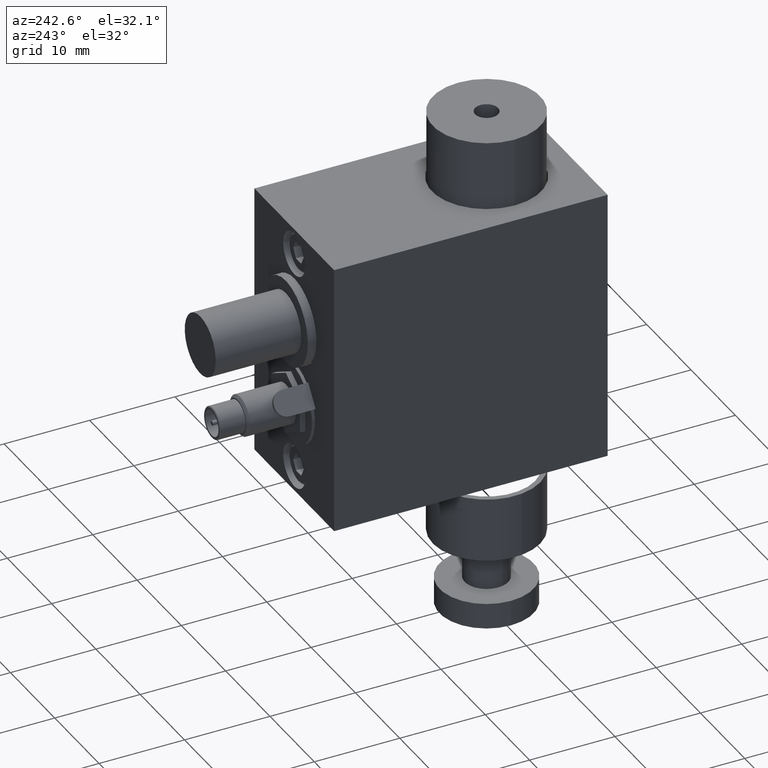
[diagram: clean part render]
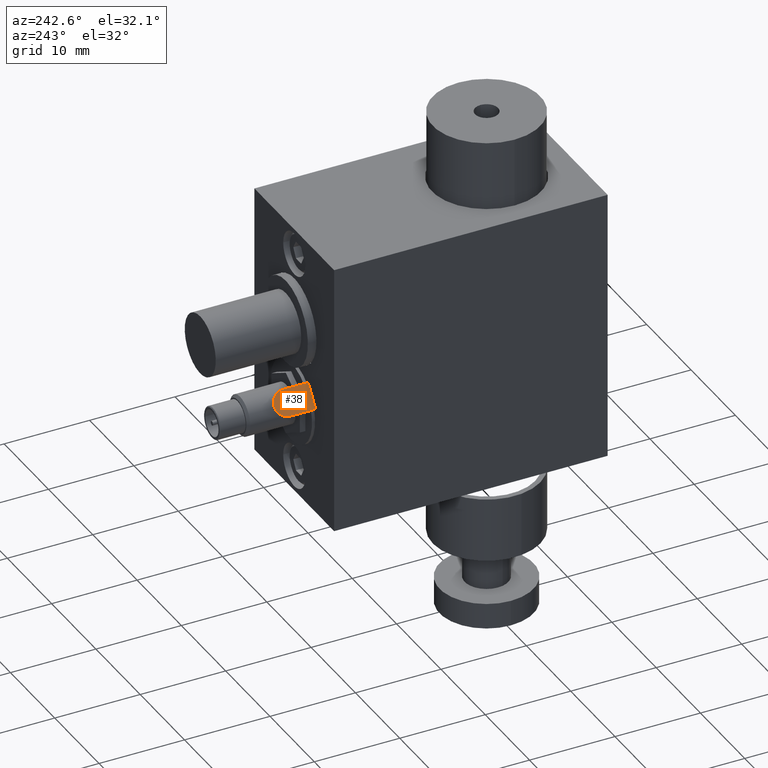
[diagram: same view with one face highlighted and labeled with its STEP entity id]
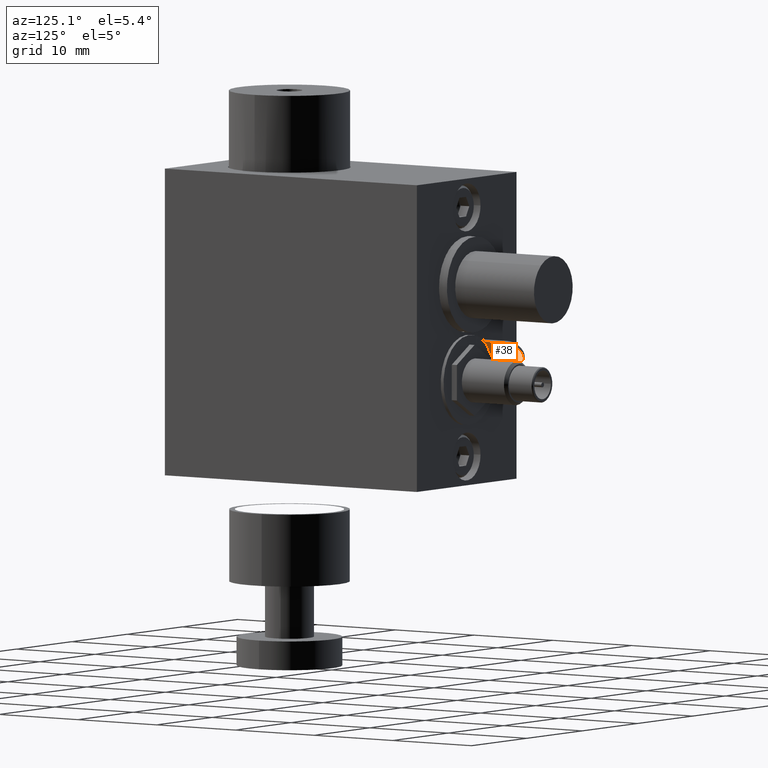
[diagram: same view with one face highlighted and labeled with its STEP entity id]
A machine part, auxiliary view. The second image highlights one B-rep face of the part: STEP entity #38.
A second angle (auxiliary view) of the same face is appended — the face is thin or edge-on in the first view.
In plain terms, the highlighted planar face has unit normal (-0.8145, -0, 0.5802).
Its self-contained STEP definition (entity closure, byte-faithful):
#11 = ORIENTED_EDGE ( 'NONE', *, *, #37, .T. ) ;
#12 = ORIENTED_EDGE ( 'NONE', *, *, #1475, .T. ) ;
#13 = ORIENTED_EDGE ( 'NONE', *, *, #14, .T. ) ;
#14 = EDGE_CURVE ( 'NONE', #1500, #1480, #1523, .T. ) ;
#15 = ORIENTED_EDGE ( 'NONE', *, *, #29, .T. ) ;
#27 = VERTEX_POINT ( 'NONE', #1542 ) ;
#29 = EDGE_CURVE ( 'NONE', #1480, #27, #1541, .T. ) ;
#37 = EDGE_CURVE ( 'NONE', #27, #1495, #1621, .T. ) ;
#38 = ADVANCED_FACE ( 'NONE', ( #1616 ), #1601, .T. ) ;
#39 = EDGE_LOOP ( 'NONE', ( #11, #12, #13, #15 ) ) ;
#1475 = EDGE_CURVE ( 'NONE', #1495, #1500, #6251, .T. ) ;
#1480 = VERTEX_POINT ( 'NONE', #6284 ) ;
#1495 = VERTEX_POINT ( 'NONE', #6302 ) ;
#1500 = VERTEX_POINT ( 'NONE', #6295 ) ;
#1520 = DIRECTION ( 'NONE',  ( 0.5801858995515998300, 3.071226592122472100E-016, 0.8144840833076487700 ) ) ;
#1521 = VECTOR ( 'NONE', #1520, 1000.000000000000100 ) ;
#1522 = CARTESIAN_POINT ( 'NONE',  ( -6.676126786542249100, 22.93620178041573600, -27.36585315317749700 ) ) ;
#1523 = LINE ( 'NONE', #1522, #1521 ) ;
#1541 = LINE ( 'NONE', #1592, #1591 ) ;
#1542 = CARTESIAN_POINT ( 'NONE',  ( -5.003649848733193300, 25.93708683629865400, -25.01797491863684200 ) ) ;
#1590 = DIRECTION ( 'NONE',  ( -1.944448760291445800E-016, 1.000000000000000000, -1.000324692243972500E-016 ) ) ;
#1591 = VECTOR ( 'NONE', #1590, 1000.000000000000000 ) ;
#1592 = CARTESIAN_POINT ( 'NONE',  ( -5.003649848733193300, 25.93708683629865400, -25.01797491863684200 ) ) ;
#1596 = DIRECTION ( 'NONE',  ( 0.5801858995515999400, 1.942890293094023500E-016, 0.8144840833076486500 ) ) ;
#1597 = DIRECTION ( 'NONE',  ( -0.8144840833076486500, -1.118688941298819700E-016, 0.5801858995515999400 ) ) ;
#1598 = CARTESIAN_POINT ( 'NONE',  ( -5.839888317637721600, 25.93708683629865400, -26.19191403590717100 ) ) ;
#1599 = AXIS2_PLACEMENT_3D ( 'NONE', #1598, #1597, #1596 ) ;
#1601 = PLANE ( 'NONE',  #1599 ) ;
#1616 = FACE_OUTER_BOUND ( 'NONE', #39, .T. ) ;
#1617 = DIRECTION ( 'NONE',  ( 0.5801858995515997200, 0.0000000000000000000, 0.8144840833076488800 ) ) ;
#1618 = DIRECTION ( 'NONE',  ( -0.8144840833076486500, -1.118688941298819700E-016, 0.5801858995515999400 ) ) ;
#1619 = CARTESIAN_POINT ( 'NONE',  ( -5.839888317637721600, 25.93708683629865400, -26.19191403590717100 ) ) ;
#1620 = AXIS2_PLACEMENT_3D ( 'NONE', #1619, #1618, #1617 ) ;
#1621 = CIRCLE ( 'NONE', #1620, 1.441328494109939100 ) ;
#6248 = DIRECTION ( 'NONE',  ( 1.944448760291445800E-016, -1.000000000000000000, 1.000324692243972500E-016 ) ) ;
#6249 = VECTOR ( 'NONE', #6248, 1000.000000000000000 ) ;
#6250 = CARTESIAN_POINT ( 'NONE',  ( -6.676126786542250900, 25.93708683629865400, -27.36585315317749700 ) ) ;
#6251 = LINE ( 'NONE', #6250, #6249 ) ;
#6284 = CARTESIAN_POINT ( 'NONE',  ( -5.003649848733193300, 22.93620178041573600, -25.01797491863684200 ) ) ;
#6295 = CARTESIAN_POINT ( 'NONE',  ( -6.676126786542249100, 22.93620178041573600, -27.36585315317749700 ) ) ;
#6302 = CARTESIAN_POINT ( 'NONE',  ( -6.676126786542250900, 25.93708683629865400, -27.36585315317749700 ) ) ;